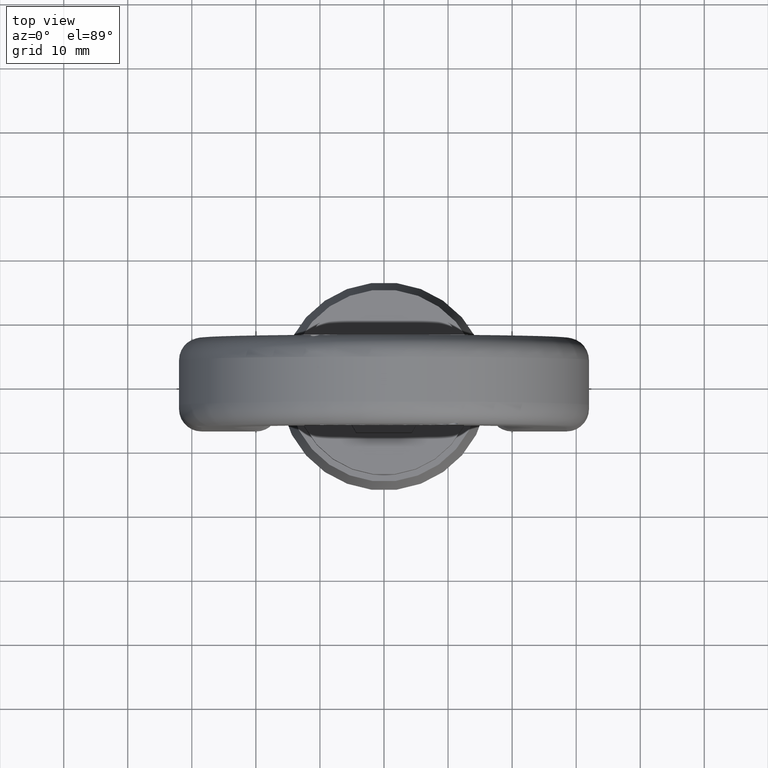
[diagram: clean part render]
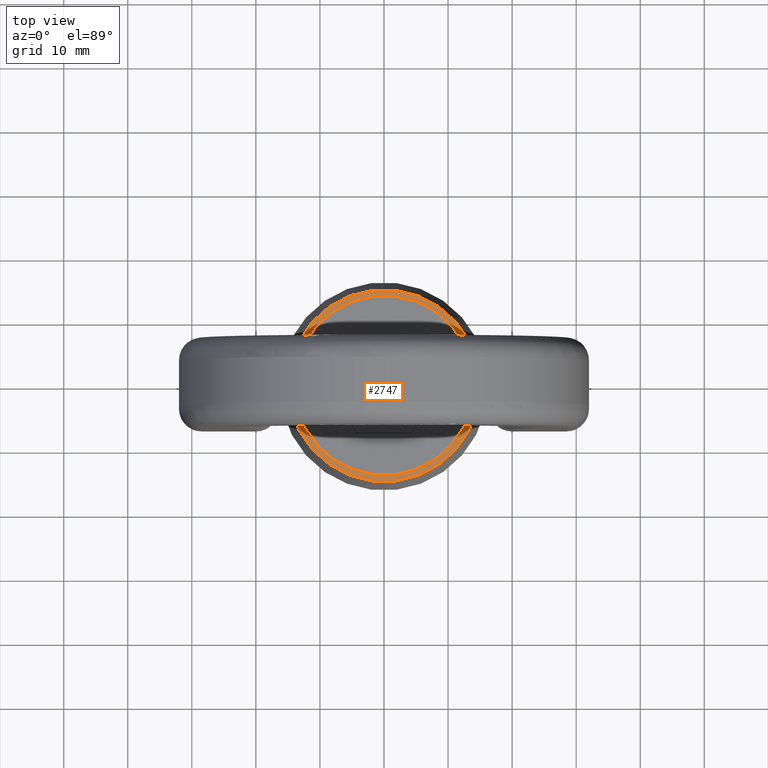
[diagram: same view with one face highlighted and labeled with its STEP entity id]
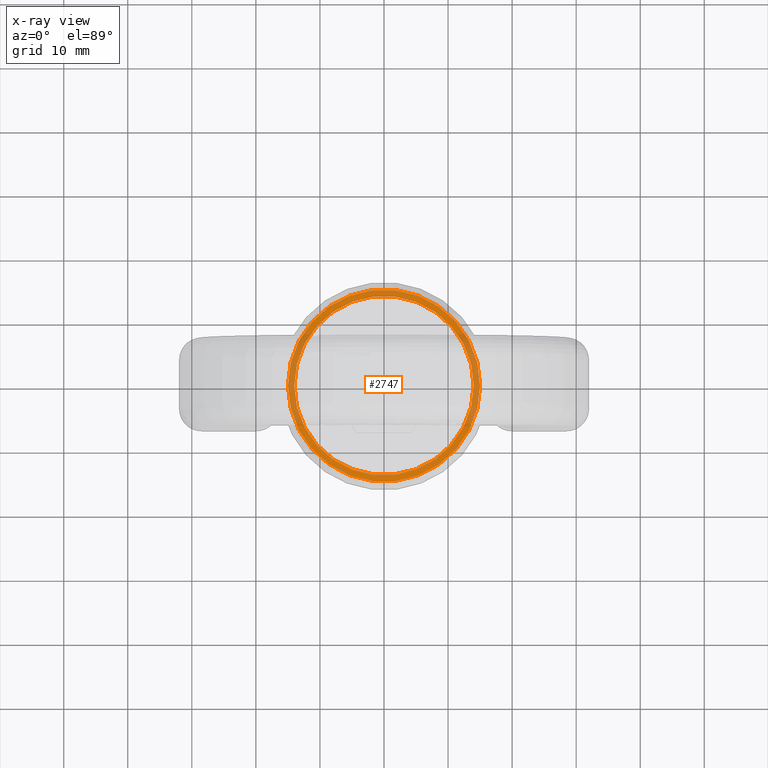
[diagram: x-ray of the same camera — body ghosted, the highlighted face saturated]
A machine part, top view. The second image highlights one B-rep face of the part: STEP entity #2747.
The next image is the same camera in x-ray: the body ghosted, the highlighted face saturated — about 33% of this face is hidden behind the body in this view.
In plain terms, the highlighted planar face has unit normal (0, 0, 1).
Its self-contained STEP definition (entity closure, byte-faithful):
#2629=PLANE('',#5629);
#2747=ADVANCED_FACE('',(#3013,#3014),#2629,.T.);
#3013=FACE_BOUND('',#3074,.T.);
#3014=FACE_BOUND('',#3075,.T.);
#3074=EDGE_LOOP('',(#3348));
#3075=EDGE_LOOP('',(#3349));
#3348=ORIENTED_EDGE('',*,*,#4957,.T.);
#3349=ORIENTED_EDGE('',*,*,#4956,.F.);
#4554=VERTEX_POINT('',#6631);
#4555=VERTEX_POINT('',#6634);
#4956=EDGE_CURVE('',#4554,#4554,#5562,.T.);
#4957=EDGE_CURVE('',#4555,#4555,#5563,.T.);
#5562=CIRCLE('',#5626,15.);
#5563=CIRCLE('',#5628,14.);
#5626=AXIS2_PLACEMENT_3D('',#6630,#5846,#5847);
#5628=AXIS2_PLACEMENT_3D('',#6633,#5850,#5851);
#5629=AXIS2_PLACEMENT_3D('',#6635,#5852,#5853);
#5846=DIRECTION('',(0.,0.,-1.));
#5847=DIRECTION('',(-1.,0.,0.));
#5850=DIRECTION('',(0.,0.,-1.));
#5851=DIRECTION('',(-1.,0.,0.));
#5852=DIRECTION('',(0.,0.,1.));
#5853=DIRECTION('',(1.,0.,0.));
#6630=CARTESIAN_POINT('',(0.,0.,18.1));
#6631=CARTESIAN_POINT('',(-15.,0.,18.1));
#6633=CARTESIAN_POINT('',(0.,0.,18.1));
#6634=CARTESIAN_POINT('',(-14.,0.,18.1));
#6635=CARTESIAN_POINT('',(0.,15.,18.1));